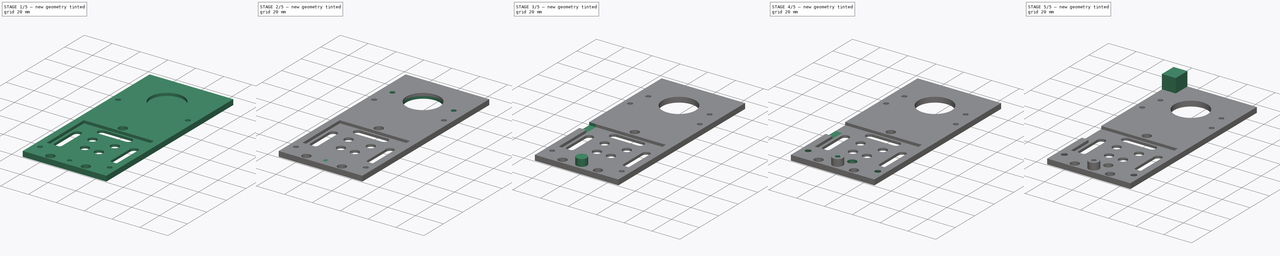
[diagram: build sequence overview — one tinted view per stage of 5, left to right]
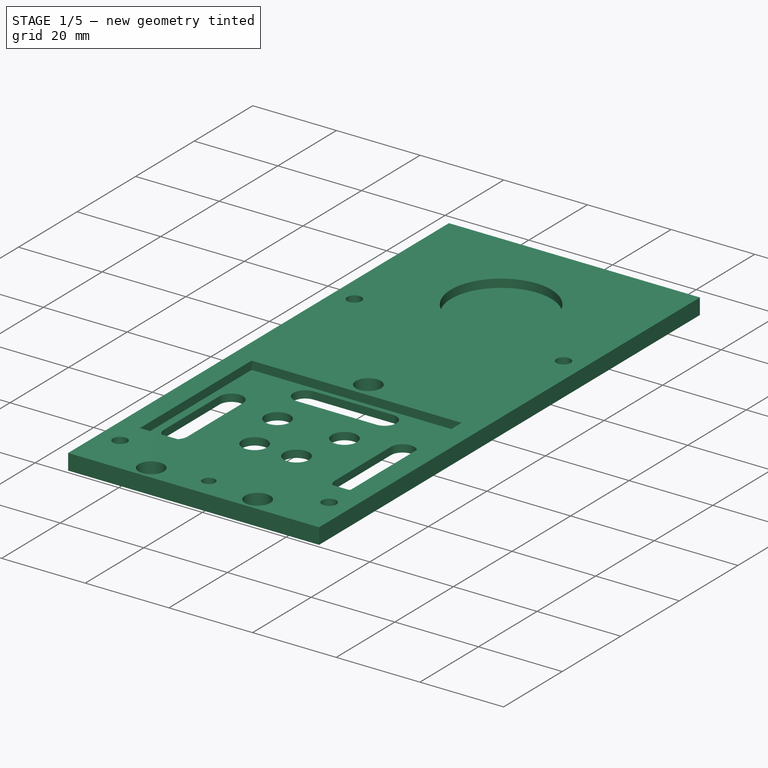
[diagram: stage 1 of 5 — iso view after this stage's code; geometry added in this stage tinted green]
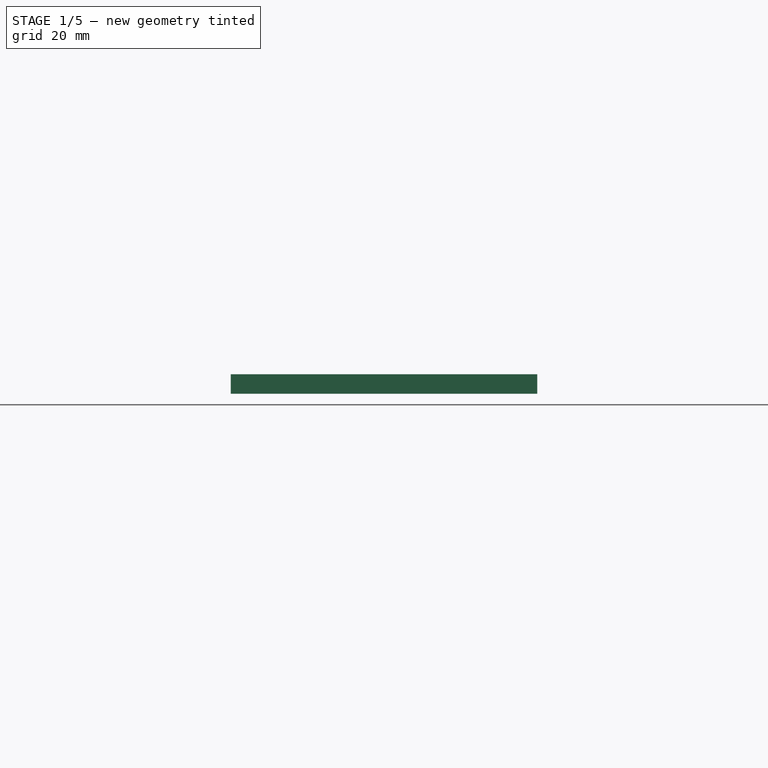
[diagram: stage 1 of 5 — front view after this stage's code; geometry added in this stage tinted green]
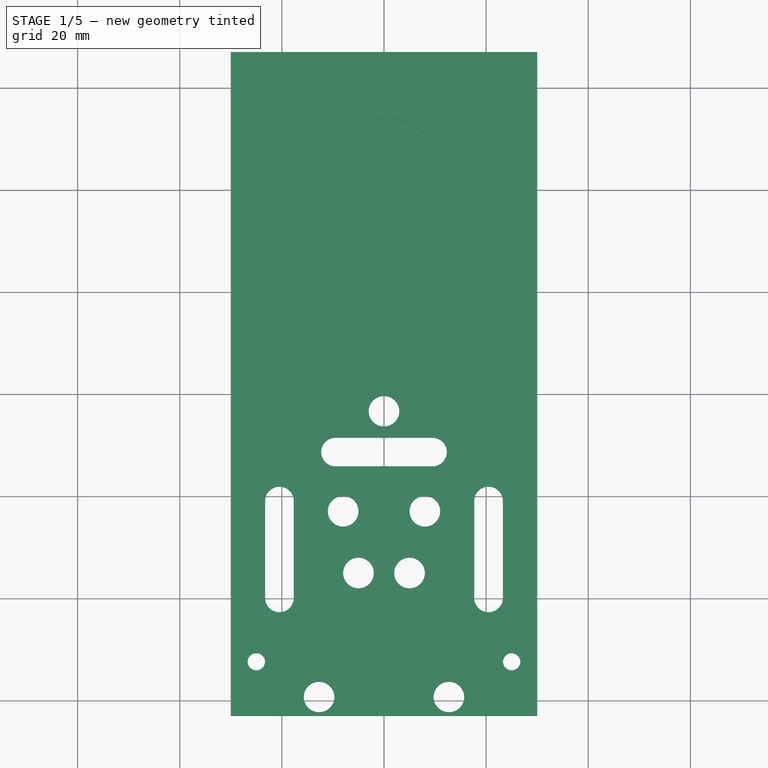
[diagram: stage 1 of 5 — top view after this stage's code; geometry added in this stage tinted green]
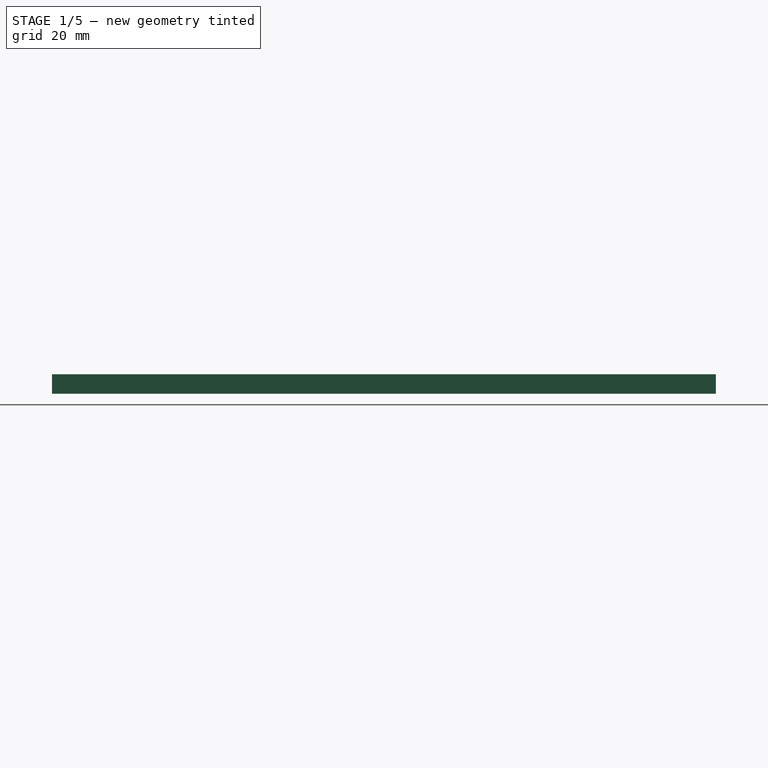
[diagram: stage 1 of 5 — right view after this stage's code; geometry added in this stage tinted green]
FCSTD DOCUMENT  (FreeCAD 0.18.4R)
Label: main_head_PnP_v1.01_2
License: All rights reserved
LicenseURL: http://en.wikipedia.org/wiki/All_rights_reserved
objects: Sketcher::SketchObject×23, PartDesign::Pocket×13, PartDesign::Pad×5, PartDesign::Hole×1, PartDesign::Body×1
note: 62 computed .brp shape members not serialized (recipe doc carries the construction recipe); baked Part::Feature solids carry a one-line shape summary decoded from their .brp

FEATURE [Sketcher::SketchObject] Sketch
  MapMode = 5
  Support = -> [XY_Plane]
  sketch-geometry (31):
    g0: LineSegment StartX=30 StartY=-63 StartZ=0 EndX=-30 EndY=-63 EndZ=0
    g1: LineSegment StartX=-30 StartY=-63 StartZ=0 EndX=-30 EndY=67 EndZ=0
    g2: LineSegment StartX=-30 StartY=67 StartZ=0 EndX=0 EndY=67 EndZ=0
    g3: LineSegment StartX=30 StartY=-2 StartZ=0 EndX=30 EndY=-22 EndZ=0
    g4: LineSegment StartX=30 StartY=-41 StartZ=0 EndX=30 EndY=-63 EndZ=0
    g5: Circle CenterX=-12.71 CenterY=-59.3 CenterZ=0 NormalX=0 NormalY=0 NormalZ=1 AngleXU=0 Radius=3
    g6: Circle CenterX=12.71 CenterY=-59.3 CenterZ=0 NormalX=0 NormalY=0 NormalZ=1 AngleXU=0 Radius=3
    g7: ArcOfCircle CenterX=-20.4691 CenterY=-39.89 CenterZ=0 NormalX=0 NormalY=0 NormalZ=1 AngleXU=0 Radius=2.8 StartAngle=3.14159 EndAngle=6.28319
    g8: ArcOfCircle CenterX=-20.4691 CenterY=-20.89 CenterZ=0 NormalX=0 NormalY=0 NormalZ=1 AngleXU=0 Radius=2.8 StartAngle=0 EndAngle=3.14159
    g9: LineSegment StartX=-17.6691 StartY=-39.89 StartZ=0 EndX=-17.6691 EndY=-20.89 EndZ=0
    g10: LineSegment StartX=-23.2691 StartY=-39.89 StartZ=0 EndX=-23.2691 EndY=-20.89 EndZ=0
    g11: ArcOfCircle CenterX=20.4691 CenterY=-39.89 CenterZ=0 NormalX=0 NormalY=0 NormalZ=1 AngleXU=0 Radius=2.8 StartAngle=3.14159 EndAngle=6.28319
    g12: ArcOfCircle CenterX=20.4691 CenterY=-20.89 CenterZ=0 NormalX=0 NormalY=0 NormalZ=1 AngleXU=0 Radius=2.8 StartAngle=1e-16 EndAngle=3.14159
    g13: LineSegment StartX=23.2691 StartY=-39.89 StartZ=0 EndX=23.2691 EndY=-20.89 EndZ=0
    g14: LineSegment StartX=17.6691 StartY=-39.89 StartZ=0 EndX=17.6691 EndY=-20.89 EndZ=0
    g15: ArcOfCircle CenterX=-9.5 CenterY=-11.3133 CenterZ=0 NormalX=0 NormalY=0 NormalZ=1 AngleXU=0 Radius=2.8 StartAngle=1.5708 EndAngle=4.71239
    g16: ArcOfCircle CenterX=9.5 CenterY=-11.3133 CenterZ=0 NormalX=0 NormalY=0 NormalZ=1 AngleXU=0 Radius=2.8 StartAngle=4.71239 EndAngle=7.85398
    g17: LineSegment StartX=-9.5 StartY=-14.1133 StartZ=0 EndX=9.5 EndY=-14.1133 EndZ=0
    g18: LineSegment StartX=-9.5 StartY=-8.51328 StartZ=0 EndX=9.5 EndY=-8.51328 EndZ=0
    g19: Circle CenterX=0 CenterY=-3.33121 CenterZ=0 NormalX=0 NormalY=0 NormalZ=1 AngleXU=0 Radius=3
    g20: Circle CenterX=-8 CenterY=-22.9179 CenterZ=0 NormalX=0 NormalY=0 NormalZ=1 AngleXU=0 Radius=3
    g21: Circle CenterX=8 CenterY=-22.9179 CenterZ=0 NormalX=0 NormalY=0 NormalZ=1 AngleXU=0 Radius=3
    g22: Circle CenterX=-5 CenterY=-35 CenterZ=0 NormalX=0 NormalY=0 NormalZ=1 AngleXU=0 Radius=3
    g23: Circle CenterX=5 CenterY=-35 CenterZ=0 NormalX=0 NormalY=0 NormalZ=1 AngleXU=0 Radius=3
    g24: Circle CenterX=-5 CenterY=-50 CenterZ=0 NormalX=0 NormalY=0 NormalZ=1 AngleXU=0 Radius=3
    g25: Circle CenterX=5 CenterY=-50 CenterZ=0 NormalX=0 NormalY=0 NormalZ=1 AngleXU=0 Radius=3
    g26: LineSegment StartX=30 StartY=-41 StartZ=0 EndX=30 EndY=-22 EndZ=0
    g27: LineSegment StartX=0 StartY=67 StartZ=0 EndX=30 EndY=67 EndZ=0
    g28: LineSegment StartX=30 StartY=-2 StartZ=0 EndX=30 EndY=67 EndZ=0
    g29: Circle CenterX=-25 CenterY=-52.3926 CenterZ=0 NormalX=0 NormalY=0 NormalZ=1 AngleXU=0 Radius=1.7
    g30: Circle CenterX=25 CenterY=-52.3926 CenterZ=0 NormalX=0 NormalY=0 NormalZ=1 AngleXU=0 Radius=1.7
  constraints (72):
    c: Vertical(g1)
    c: Distance(g0,g0) = 60
    c: Coincident(g2,g1)
    c: PointOnObject(g2,g-2)
    c: Horizontal(g2)
    c: Vertical(g3)
    c: Coincident(g4,g0)
    c: Vertical(g4)
    c: DistanceY(g-1,g1) = 67
    c: Coincident(g0,g1)
    c: Symmetric(g0,g0,g-2)
    c: Symmetric(g5,g6,g-2)
    c: Distance(g6,g5) = 25.42
    c: Radius(g5) = 3
    c: Radius(g6) = 3
    c: Tangent(g7,g10) = 1.5708
    c: Tangent(g7,g9) = -1.5708
    c: Tangent(g9,g8) = -1.5708
    c: Tangent(g10,g8) = 1.5708
    c: Vertical(g9)
    c: Equal(g7,g8)
    c: Tangent(g11,g14) = 1.5708
    c: Tangent(g11,g13) = -1.5708
    c: Tangent(g13,g12) = -1.5708
    c: Tangent(g14,g12) = 1.5708
    c: Vertical(g13)
    c: Equal(g11,g12)
    c: Tangent(g15,g18) = 1.5708
    c: Tangent(g15,g17) = -1.5708
    c: Tangent(g17,g16) = -1.5708
    c: Tangent(g18,g16) = 1.5708
    c: Horizontal(g17)
    c: Distance(g8,g7) = 19
    c: Distance(g12,g11) = 19
    c: Distance(g15,g16) = 19
    c: Distance(g8,g8) = 5.6
    c: Distance(g15,g15) = 5.6
    c: Distance(g12,g12) = 5.6
    c: Symmetric(g15,g16,g-2)
    c: Symmetric(g8,g12,g-2)
    c: PointOnObject(g19,g-2)
    c: Radius(g19) = 3
    c: Symmetric(g20,g21,g-2)
    c: Radius(g20) = 3
    c: Radius(g21) = 3
    c: Distance(g20,g21) = 16
    c: Horizontal(g24,g25)
    c: Vertical(g22,g24)
    c: Vertical(g23,g25)
    c: Symmetric(g22,g23,g-2)
    c: Distance(g22,g23) = 10
    c: Distance(g24,g22) = 15
    c: Radius(g22) = 3
    c: Radius(g23) = 3
    c: Radius(g25) = 3
    c: Radius(g24) = 3
    c: Distance(g5,g0) = 3.7
    c: Distance(g24,g0) = 13
    c: Coincident(g26,g4)
    c: Coincident(g26,g3)
    c: Vertical(g4,g3)
    c: Coincident(g27,g2)
    c: Horizontal(g27)
    c: Coincident(g28,g3)
    c: Coincident(g28,g27)
    c: Vertical(g28)
    c: Distance(g7,g0) = 23.11
    c: Symmetric(g30,g29,g-2)
    c: Distance(g29,g30) = 50
    c: Radius(g29) = 1.7
    c: Radius(g30) = 1.7
    c: DistanceY(g-1,g0) = -63
FEATURE [PartDesign::Pad] Pad
  Length = 1.8
  Length2 = 100
  Profile = -> Sketch
  Type = 0
FEATURE [Sketcher::SketchObject] Sketch001
  ExternalGeometry = -> [Pad]
  MapMode = 5
  Placement = pos=(0,0,1.8) rot=(0,0,1;0rad)
  Support = -> [Pad]
  sketch-geometry (18):
    g0: LineSegment StartX=-30 StartY=-63 StartZ=0 EndX=30 EndY=-63 EndZ=0
    g1: LineSegment StartX=30 StartY=-63 StartZ=0 EndX=30 EndY=67 EndZ=0
    g2: LineSegment StartX=30 StartY=67 StartZ=0 EndX=-30 EndY=67 EndZ=0
    g3: LineSegment StartX=-30 StartY=67 StartZ=0 EndX=-30 EndY=-63 EndZ=0
    g4: Circle CenterX=0 CenterY=42 CenterZ=0 NormalX=0 NormalY=0 NormalZ=1 AngleXU=0 Radius=12
    g5: Circle CenterX=-25 CenterY=27.6074 CenterZ=0 NormalX=0 NormalY=0 NormalZ=1 AngleXU=0 Radius=1.7
    g6: Circle CenterX=25 CenterY=27.6074 CenterZ=0 NormalX=0 NormalY=0 NormalZ=1 AngleXU=0 Radius=1.7
    g7: Circle CenterX=0 CenterY=-3.33121 CenterZ=0 NormalX=0 NormalY=0 NormalZ=1 AngleXU=0 Radius=3
    g8: Circle CenterX=12.71 CenterY=-59.3 CenterZ=0 NormalX=0 NormalY=0 NormalZ=1 AngleXU=0 Radius=3
    g9: Circle CenterX=25 CenterY=-52.3926 CenterZ=0 NormalX=0 NormalY=0 NormalZ=1 AngleXU=0 Radius=1.7
    g10: Circle CenterX=-12.71 CenterY=-59.3 CenterZ=0 NormalX=0 NormalY=0 NormalZ=1 AngleXU=0 Radius=3
    g11: Circle CenterX=-25 CenterY=-52.3926 CenterZ=0 NormalX=0 NormalY=0 NormalZ=1 AngleXU=0 Radius=1.7
    g12: LineSegment StartX=-25.1108 StartY=-7.34877 StartZ=0 EndX=25.1108 EndY=-7.34877 EndZ=0
    g13: LineSegment StartX=25.1108 StartY=-7.34877 StartZ=0 EndX=25.1108 EndY=-45.4696 EndZ=0
    g14: LineSegment StartX=25.1108 StartY=-45.4696 StartZ=0 EndX=-25.1108 EndY=-45.4696 EndZ=0
    g15: LineSegment StartX=-25.1108 StartY=-45.4696 StartZ=0 EndX=-25.1108 EndY=-17.2498 EndZ=0
    g16: LineSegment StartX=-30 StartY=-17.2498 StartZ=0 EndX=-30 EndY=-7.34877 EndZ=0
    g17: LineSegment StartX=-25.1108 StartY=-17.2498 StartZ=0 EndX=-25.1108 EndY=-7.34877 EndZ=0
  constraints (40):
    c: Coincident(g0,g1)
    c: Coincident(g1,g2)
    c: Coincident(g2,g3)
    c: Coincident(g3,g0)
    c: Horizontal(g0)
    c: Horizontal(g2)
    c: Vertical(g1)
    c: Vertical(g3)
    c: Coincident(g0,g-8)
    c: PointOnObject(g-7,g1)
    c: DistanceY(g3,g3) = 130
    c: PointOnObject(g4,g-2)
    c: Distance(g4,g2) = 25
    c: Radius(g4) = 12
    c: Radius(g5) = 1.7
    c: Radius(g6) = 1.7
    c: Distance(g6,g-9) = 80
    c: Coincident(g7,g-14)
    c: Coincident(g8,g-10)
    c: Coincident(g9,g-9)
    c: Radius(g8) = 3
    c: Coincident(g10,g-11)
    c: Radius(g10) = 3
    c: Coincident(g11,g-15)
    c: Radius(g9) = 1.7
    c: Radius(g7) = 3
    c: Radius(g11) = 1.7
    c: Coincident(g12,g13)
    c: Coincident(g13,g14)
    c: Horizontal(g14)
    c: Vertical(g13)
    c: Symmetric(g12,g12,g-2)
    c: PointOnObject(g16,g3)
    c: Coincident(g15,g14)
    c: Vertical(g15)
    c: PointOnObject(g16,g3)
    c: Horizontal(g16,g12)
    c: Coincident(g17,g15)
    c: Coincident(g17,g12)
    c: Vertical(g17)
FEATURE [Sketcher::SketchObject] CopySketch001
  Placement = pos=(0,0,1.8) rot=(0,0,1;0rad)
  sketch-geometry (18):
    g0: LineSegment StartX=-30 StartY=-63 StartZ=0 EndX=30 EndY=-63 EndZ=0
    g1: LineSegment StartX=30 StartY=-63 StartZ=0 EndX=30 EndY=67 EndZ=0
    g2: LineSegment StartX=30 StartY=67 StartZ=0 EndX=-30 EndY=67 EndZ=0
    g3: LineSegment StartX=-30 StartY=67 StartZ=0 EndX=-30 EndY=-63 EndZ=0
    g4: Circle CenterX=0 CenterY=42 CenterZ=0 NormalX=0 NormalY=0 NormalZ=1 AngleXU=0 Radius=12
    g5: Circle CenterX=-25 CenterY=27.6074 CenterZ=0 NormalX=0 NormalY=0 NormalZ=1 AngleXU=0 Radius=1.7
    g6: Circle CenterX=25 CenterY=27.6074 CenterZ=0 NormalX=0 NormalY=0 NormalZ=1 AngleXU=0 Radius=1.7
    g7: Circle CenterX=0 CenterY=-3.33121 CenterZ=0 NormalX=0 NormalY=0 NormalZ=1 AngleXU=0 Radius=3
    g8: Circle CenterX=12.71 CenterY=-59.3 CenterZ=0 NormalX=0 NormalY=0 NormalZ=1 AngleXU=0 Radius=3
    g9: Circle CenterX=25 CenterY=-52.3926 CenterZ=0 NormalX=0 NormalY=0 NormalZ=1 AngleXU=0 Radius=1.7
    g10: Circle CenterX=-12.71 CenterY=-59.3 CenterZ=0 NormalX=0 NormalY=0 NormalZ=1 AngleXU=0 Radius=3
    g11: Circle CenterX=-25 CenterY=-52.3926 CenterZ=0 NormalX=0 NormalY=0 NormalZ=1 AngleXU=0 Radius=1.7
    g12: LineSegment StartX=-25.1108 StartY=-7.34877 StartZ=0 EndX=25.1108 EndY=-7.34877 EndZ=0
    g13: LineSegment StartX=25.1108 StartY=-7.34877 StartZ=0 EndX=25.1108 EndY=-45.4696 EndZ=0
    g14: LineSegment StartX=25.1108 StartY=-45.4696 StartZ=0 EndX=-25.1108 EndY=-45.4696 EndZ=0
    g15: LineSegment StartX=-25.1108 StartY=-45.4696 StartZ=0 EndX=-25.1108 EndY=-17.2498 EndZ=0
    g16: LineSegment StartX=-30 StartY=-17.2498 StartZ=0 EndX=-30 EndY=-7.34877 EndZ=0
    g17: LineSegment StartX=-25.1108 StartY=-17.2498 StartZ=0 EndX=-25.1108 EndY=-7.34877 EndZ=0
  constraints (32):
    c: Coincident(g0,g1)
    c: Coincident(g1,g2)
    c: Coincident(g2,g3)
    c: Coincident(g3,g0)
    c: Horizontal(g0)
    c: Horizontal(g2)
    c: Vertical(g1)
    c: Vertical(g3)
    c: DistanceY(g3,g3) = 130
    c: PointOnObject(g4,g-2)
    c: Distance(g4,g2) = 25
    c: Radius(g4) = 12
    c: Radius(g5) = 1.7
    c: Radius(g6) = 1.7
    c: Radius(g8) = 3
    c: Radius(g10) = 3
    c: Radius(g9) = 1.7
    c: Radius(g7) = 3
    c: Radius(g11) = 1.7
    c: Coincident(g12,g13)
    c: Coincident(g13,g14)
    c: Horizontal(g14)
    c: Vertical(g13)
    c: Symmetric(g12,g12,g-2)
    c: PointOnObject(g16,g3)
    c: Coincident(g15,g14)
    c: Vertical(g15)
    c: PointOnObject(g16,g3)
    c: Horizontal(g16,g12)
    c: Coincident(g17,g15)
    c: Coincident(g17,g12)
    c: Vertical(g17)
FEATURE [PartDesign::Pad] Pad001
  BaseFeature = -> Pad
  Length = 2
  Length2 = 100
  Profile = -> CopySketch001
  Type = 0
FEATURE [Sketcher::SketchObject] Sketch003
  MapMode = 5
  Placement = pos=(0,0,8) rot=(0,0,1;0rad)
  sketch-geometry (1):
    g0: Circle CenterX=0 CenterY=-57.8006 CenterZ=0 NormalX=0 NormalY=0 NormalZ=1 AngleXU=0 Radius=1.5
  constraints (1):
    c: Radius(g0) = 1.5
FEATURE [PartDesign::Pocket] Pocket
  BaseFeature = -> Pad001
  Length = 6
  Length2 = 100
  Profile = -> Sketch003
  Type = 0
FEATURE [Sketcher::SketchObject] Sketch004
  ExternalGeometry = -> [Pocket]
  MapMode = 5
  Placement = pos=(-30,0,0) rot=(0.57735,-0.57735,-0.57735;2.0944rad)
  Support = -> [Pocket]
  sketch-geometry (4):
    g0: LineSegment StartX=-25.1108 StartY=-7.34877 StartZ=0 EndX=-30 EndY=-7.34877 EndZ=0
    g1: LineSegment StartX=-30 StartY=-7.34877 StartZ=0 EndX=-30 EndY=-17.2498 EndZ=0
    g2: LineSegment StartX=-30 StartY=-17.2498 StartZ=0 EndX=-25.1108 EndY=-17.2498 EndZ=0
    g3: LineSegment StartX=-25.1108 StartY=-17.2498 StartZ=0 EndX=-25.1108 EndY=-7.34877 EndZ=0
  constraints (7):
    c: Coincident(g0,g1)
    c: Coincident(g1,g2)
    c: Coincident(g2,g3)
    c: Coincident(g3,g0)
    c: Horizontal(g0)
    c: Horizontal(g2)
    c: Vertical(g1)
FEATURE [PartDesign::Pocket] Pocket001
  BaseFeature = -> Pocket
  Length = 2
  Length2 = 100
  Profile = -> Sketch004
  Type = 0
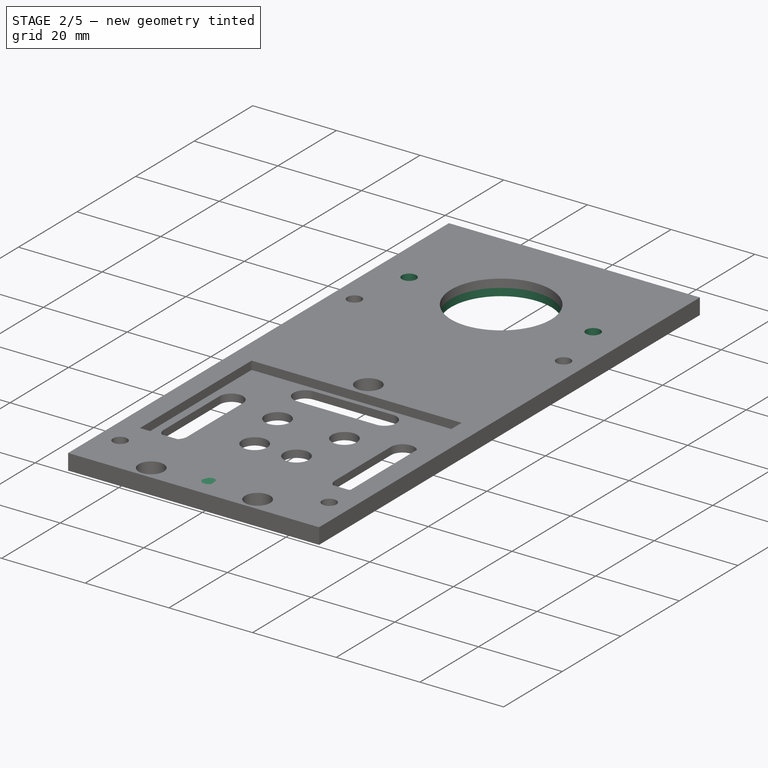
[diagram: stage 2 of 5 — iso view after this stage's code; geometry added in this stage tinted green]
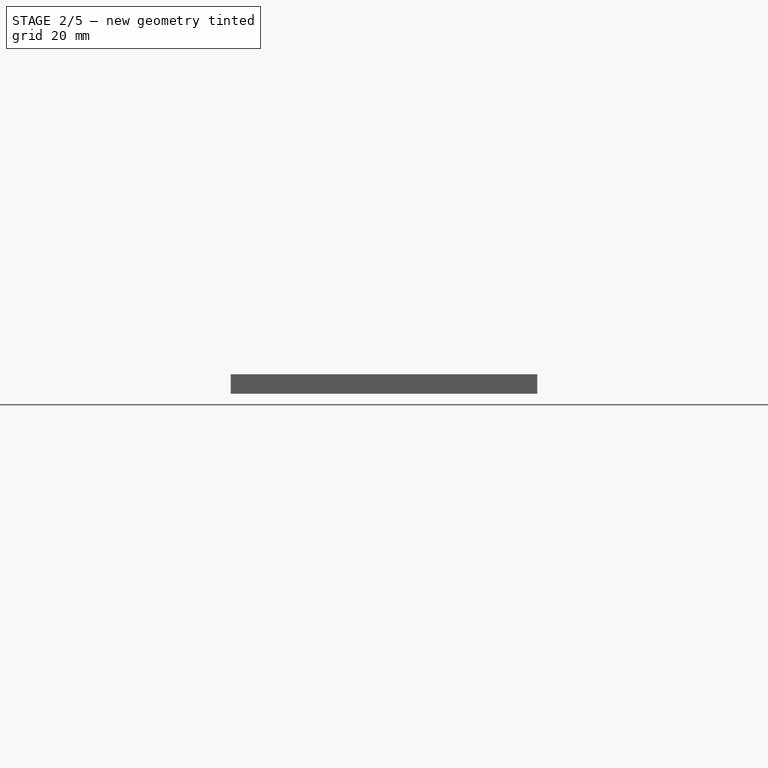
[diagram: stage 2 of 5 — front view after this stage's code; geometry added in this stage tinted green]
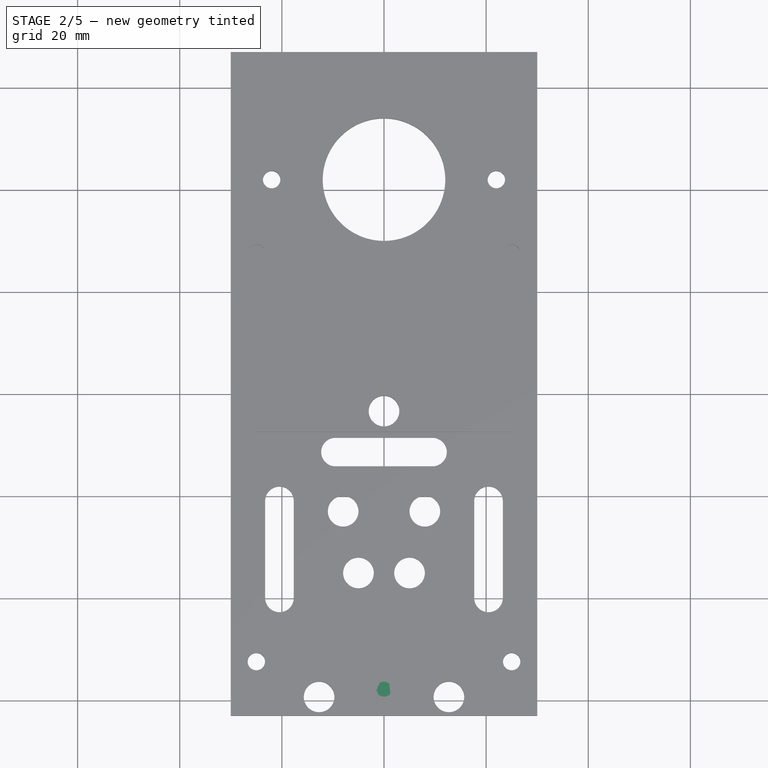
[diagram: stage 2 of 5 — top view after this stage's code; geometry added in this stage tinted green]
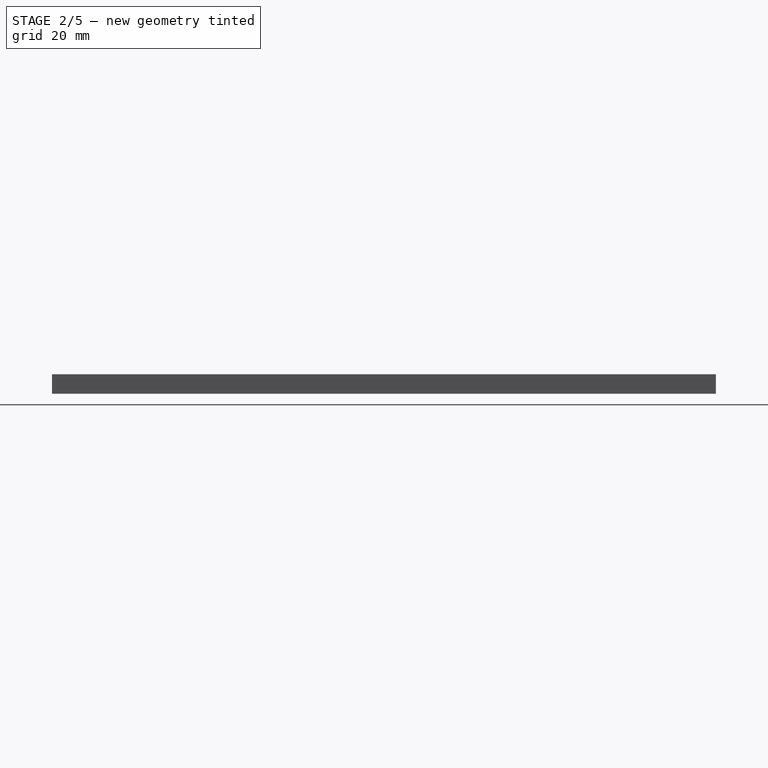
[diagram: stage 2 of 5 — right view after this stage's code; geometry added in this stage tinted green]
FEATURE [Sketcher::SketchObject] Sketch005
  ExternalGeometry = -> [Pocket001]
  MapMode = 5
  Placement = pos=(-30,0,0) rot=(0.57735,-0.57735,-0.57735;2.0944rad)
  Support = -> [Pocket001]
  sketch-geometry (2):
    g0: Circle CenterX=-22 CenterY=42 CenterZ=0 NormalX=0 NormalY=0 NormalZ=1 AngleXU=0 Radius=1.66688
    g1: Circle CenterX=22 CenterY=42 CenterZ=0 NormalX=0 NormalY=0 NormalZ=1 AngleXU=0 Radius=1.75147
FEATURE [PartDesign::Pocket] Pocket002
  BaseFeature = -> Pocket001
  Length = 4
  Length2 = 100
  Profile = -> Sketch005
  Type = 0
FEATURE [Sketcher::SketchObject] CopySketch001001  label="CopySketch002"
  Placement = pos=(0,0,1.8) rot=(0,0,1;0rad)
  sketch-geometry (18):
    g0: LineSegment StartX=-30 StartY=-63 StartZ=0 EndX=30 EndY=-63 EndZ=0
    g1: LineSegment StartX=30 StartY=-63 StartZ=0 EndX=30 EndY=67 EndZ=0
    g2: LineSegment StartX=30 StartY=67 StartZ=0 EndX=-30 EndY=67 EndZ=0
    g3: LineSegment StartX=-30 StartY=67 StartZ=0 EndX=-30 EndY=-63 EndZ=0
    g4: Circle CenterX=0 CenterY=42 CenterZ=0 NormalX=0 NormalY=0 NormalZ=1 AngleXU=0 Radius=12
    g5: Circle CenterX=-25 CenterY=27.6074 CenterZ=0 NormalX=0 NormalY=0 NormalZ=1 AngleXU=0 Radius=1.7
    g6: Circle CenterX=25 CenterY=27.6074 CenterZ=0 NormalX=0 NormalY=0 NormalZ=1 AngleXU=0 Radius=1.7
    g7: Circle CenterX=0 CenterY=-3.33121 CenterZ=0 NormalX=0 NormalY=0 NormalZ=1 AngleXU=0 Radius=3
    g8: Circle CenterX=12.71 CenterY=-59.3 CenterZ=0 NormalX=0 NormalY=0 NormalZ=1 AngleXU=0 Radius=3
    g9: Circle CenterX=25 CenterY=-52.3926 CenterZ=0 NormalX=0 NormalY=0 NormalZ=1 AngleXU=0 Radius=1.7
    g10: Circle CenterX=-12.71 CenterY=-59.3 CenterZ=0 NormalX=0 NormalY=0 NormalZ=1 AngleXU=0 Radius=3
    g11: Circle CenterX=-25 CenterY=-52.3926 CenterZ=0 NormalX=0 NormalY=0 NormalZ=1 AngleXU=0 Radius=1.7
    g12: LineSegment StartX=-25.1108 StartY=-7.34877 StartZ=0 EndX=25.1108 EndY=-7.34877 EndZ=0
    g13: LineSegment StartX=25.1108 StartY=-7.34877 StartZ=0 EndX=25.1108 EndY=-45.4696 EndZ=0
    g14: LineSegment StartX=25.1108 StartY=-45.4696 StartZ=0 EndX=-25.1108 EndY=-45.4696 EndZ=0
    g15: LineSegment StartX=-25.1108 StartY=-45.4696 StartZ=0 EndX=-25.1108 EndY=-17.2498 EndZ=0
    g16: LineSegment StartX=-30 StartY=-17.2498 StartZ=0 EndX=-30 EndY=-7.34877 EndZ=0
    g17: LineSegment StartX=-25.1108 StartY=-17.2498 StartZ=0 EndX=-25.1108 EndY=-7.34877 EndZ=0
  constraints (32):
    c: Coincident(g0,g1)
    c: Coincident(g1,g2)
    c: Coincident(g2,g3)
    c: Coincident(g3,g0)
    c: Horizontal(g0)
    c: Horizontal(g2)
    c: Vertical(g1)
    c: Vertical(g3)
    c: DistanceY(g3,g3) = 130
    c: PointOnObject(g4,g-2)
    c: Distance(g4,g2) = 25
    c: Radius(g4) = 12
    c: Radius(g5) = 1.7
    c: Radius(g6) = 1.7
    c: Radius(g8) = 3
    c: Radius(g10) = 3
    c: Radius(g9) = 1.7
    c: Radius(g7) = 3
    c: Radius(g11) = 1.7
    c: Coincident(g12,g13)
    c: Coincident(g13,g14)
    c: Horizontal(g14)
    c: Vertical(g13)
    c: Symmetric(g12,g12,g-2)
    c: PointOnObject(g16,g3)
    c: Coincident(g15,g14)
    c: Vertical(g15)
    c: PointOnObject(g16,g3)
    c: Horizontal(g16,g12)
    c: Coincident(g17,g15)
    c: Coincident(g17,g12)
    c: Vertical(g17)
FEATURE [PartDesign::Pad] Pad002
  BaseFeature = -> Pocket002
  Length = 2
  Length2 = 100
  Profile = -> CopySketch001001
  Type = 0
FEATURE [Sketcher::SketchObject] Sketch006
  ExternalGeometry = -> [Pad002]
  MapMode = 5
  Placement = pos=(0,0,1.8) rot=(0,0,1;0rad)
  Support = -> [Pad002]
  sketch-geometry (1):
    g0: Circle CenterX=0 CenterY=42 CenterZ=0 NormalX=0 NormalY=0 NormalZ=1 AngleXU=0 Radius=12
  constraints (2):
    c: Coincident(g0,g-3)
    c: Radius(g0) = 12
FEATURE [Sketcher::SketchObject] Sketch007
  ExternalGeometry = -> [Pad002]
  MapMode = 5
  Placement = pos=(0,0,3.8) rot=(0,0,1;0rad)
  Support = -> [Pad002]
  sketch-geometry (2):
    g0: Circle CenterX=-22 CenterY=42 CenterZ=0 NormalX=0 NormalY=0 NormalZ=1 AngleXU=0 Radius=1.7
    g1: Circle CenterX=22 CenterY=42 CenterZ=0 NormalX=0 NormalY=0 NormalZ=1 AngleXU=0 Radius=1.7
  constraints (5):
    c: Horizontal(g0,g-3)
    c: Radius(g0) = 1.7
    c: Radius(g1) = 1.7
    c: Distance(g0,g1) = 44
    c: Symmetric(g0,g1,g-2)
FEATURE [PartDesign::Pocket] Pocket003
  BaseFeature = -> Pad002
  Length = 5
  Length2 = 100
  Profile = -> Sketch007
  Type = 0
FEATURE [PartDesign::Pocket] Pocket004
  BaseFeature = -> Pocket003
  Length = 5
  Length2 = 100
  Profile = -> Sketch006
  Type = 0
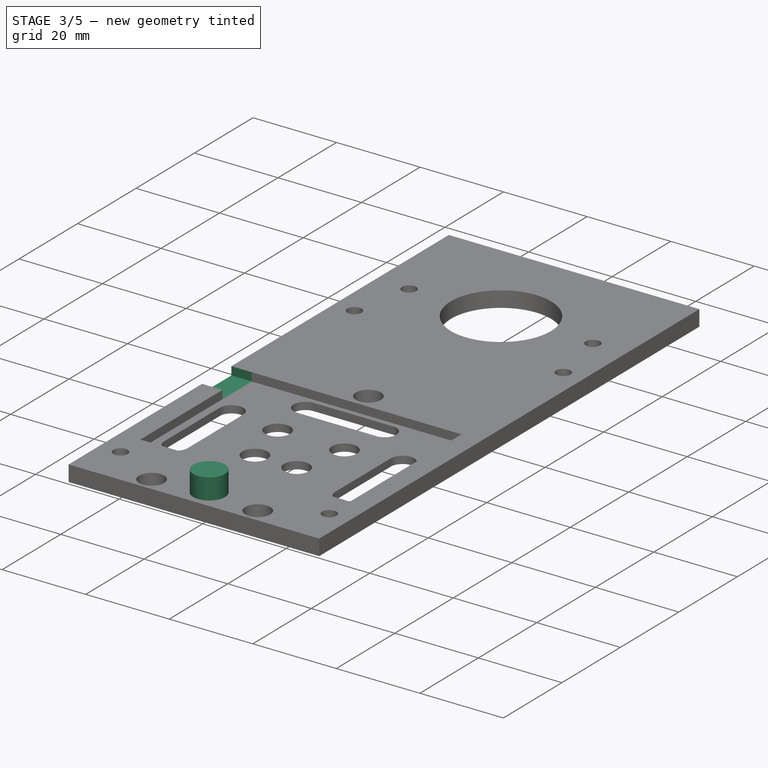
[diagram: stage 3 of 5 — iso view after this stage's code; geometry added in this stage tinted green]
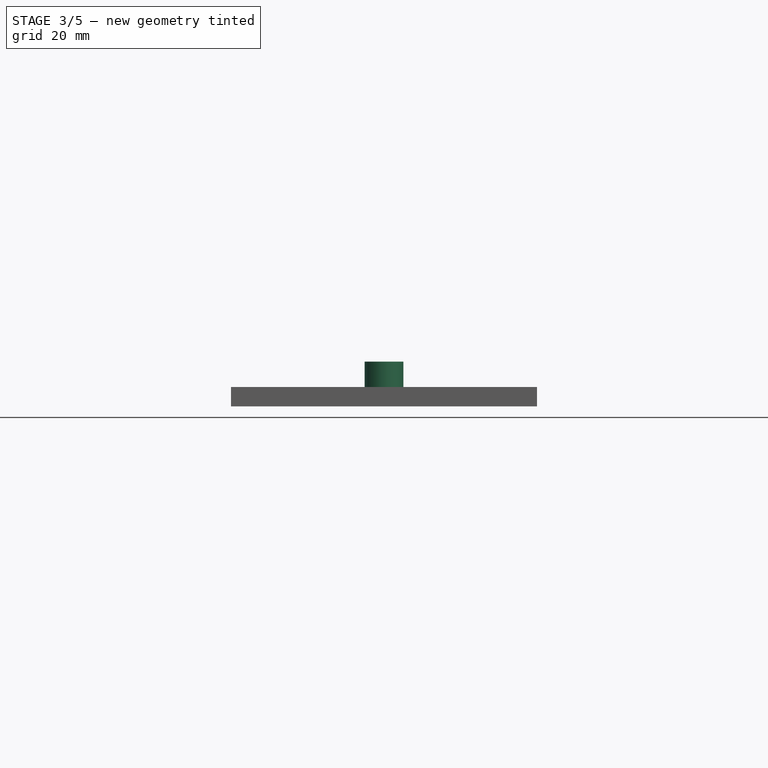
[diagram: stage 3 of 5 — front view after this stage's code; geometry added in this stage tinted green]
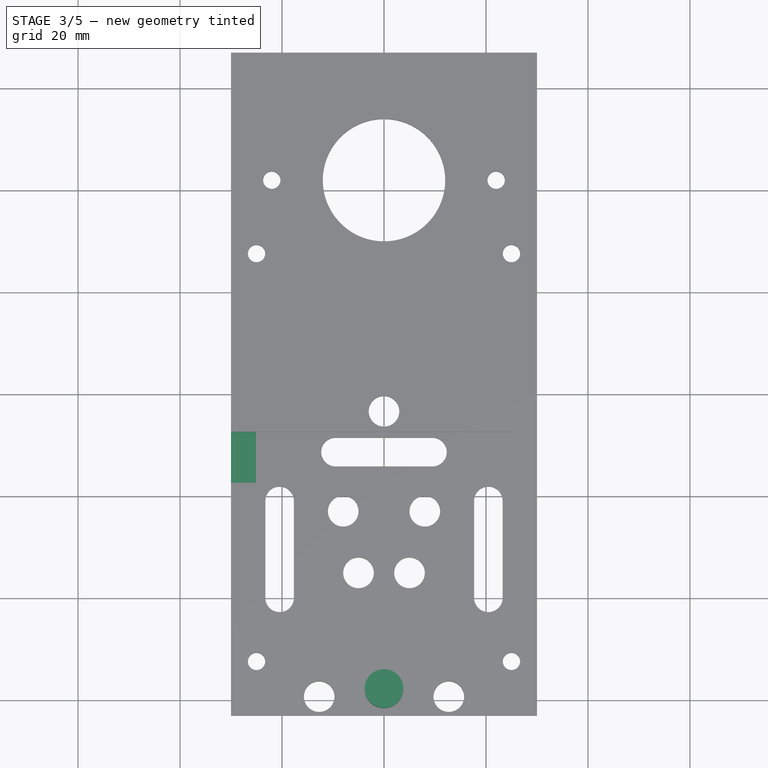
[diagram: stage 3 of 5 — top view after this stage's code; geometry added in this stage tinted green]
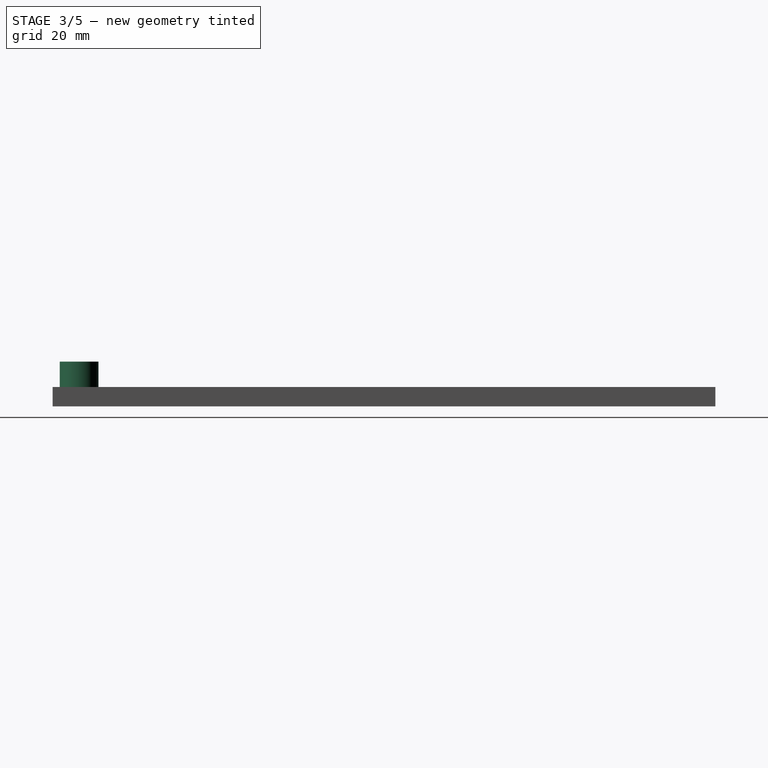
[diagram: stage 3 of 5 — right view after this stage's code; geometry added in this stage tinted green]
FEATURE [Sketcher::SketchObject] Sketch008
  ExternalGeometry = -> [Pocket003]
  MapMode = 5
  Placement = pos=(0,0,1.8) rot=(0,0,1;0rad)
  Support = -> [Pocket003]
  sketch-geometry (2):
    g0: Circle CenterX=-25 CenterY=27.6074 CenterZ=0 NormalX=0 NormalY=0 NormalZ=1 AngleXU=0 Radius=1.7
    g1: Circle CenterX=25 CenterY=27.6074 CenterZ=0 NormalX=0 NormalY=0 NormalZ=1 AngleXU=0 Radius=1.7
  constraints (4):
    c: Coincident(g0,g-3)
    c: Coincident(g1,g-4)
    c: Radius(g1) = 1.7
    c: Radius(g0) = 1.7
FEATURE [Sketcher::SketchObject] CopySketch008
  Placement = pos=(0,0,1.8) rot=(0,0,1;0rad)
  sketch-geometry (2):
    g0: Circle CenterX=-25 CenterY=27.6074 CenterZ=0 NormalX=0 NormalY=0 NormalZ=1 AngleXU=0 Radius=1.7
    g1: Circle CenterX=25 CenterY=27.6074 CenterZ=0 NormalX=0 NormalY=0 NormalZ=1 AngleXU=0 Radius=1.7
  constraints (2):
    c: Radius(g1) = 1.7
    c: Radius(g0) = 1.7
FEATURE [PartDesign::Pocket] Pocket005
  BaseFeature = -> Pocket004
  Length = 5
  Length2 = 100
  Profile = -> CopySketch008
  Type = 0
FEATURE [Sketcher::SketchObject] Sketch009
  ExternalGeometry = -> [Pocket005]
  MapMode = 5
  Support = -> [XY_Plane]
FEATURE [Sketcher::SketchObject] Sketch010
  ExternalGeometry = -> [Pocket005]
  MapMode = 5
  Placement = pos=(0,0,3.8) rot=(0,0,1;0rad)
  Support = -> [Pocket005]
  sketch-geometry (4):
    g0: LineSegment StartX=-25.1108 StartY=-7.34877 StartZ=0 EndX=-30 EndY=-7.34877 EndZ=0
    g1: LineSegment StartX=-30 StartY=-7.34877 StartZ=0 EndX=-30 EndY=-17.3488 EndZ=0
    g2: LineSegment StartX=-30 StartY=-17.3488 StartZ=0 EndX=-25.1108 EndY=-17.3488 EndZ=0
    g3: LineSegment StartX=-25.1108 StartY=-17.3488 StartZ=0 EndX=-25.1108 EndY=-7.34877 EndZ=0
  constraints (11):
    c: Coincident(g0,g1)
    c: Coincident(g1,g2)
    c: Coincident(g2,g3)
    c: Coincident(g3,g0)
    c: Horizontal(g0)
    c: Horizontal(g2)
    c: Vertical(g1)
    c: Vertical(g3)
    c: Coincident(g0,g-3)
    c: PointOnObject(g1,g-4)
    c: DistanceY(g3,g3) = 10
FEATURE [PartDesign::Pocket] Pocket006
  BaseFeature = -> Pocket005
  Length = 2
  Length2 = 100
  Profile = -> Sketch010
  Type = 0
FEATURE [Sketcher::SketchObject] Sketch011
  ExternalGeometry = -> [Pocket006]
  MapMode = 5
  Placement = pos=(0,0,3.8) rot=(0,0,1;0rad)
  Support = -> [Pocket006]
  sketch-geometry (1):
    g0: Circle CenterX=0 CenterY=-57.8006 CenterZ=0 NormalX=0 NormalY=0 NormalZ=1 AngleXU=0 Radius=3.8
  constraints (2):
    c: Coincident(g0,g-3)
    c: Radius(g0) = 3.8
FEATURE [PartDesign::Pad] Pad003
  BaseFeature = -> Pocket006
  Length = 5
  Length2 = 100
  Profile = -> Sketch011
  Type = 0
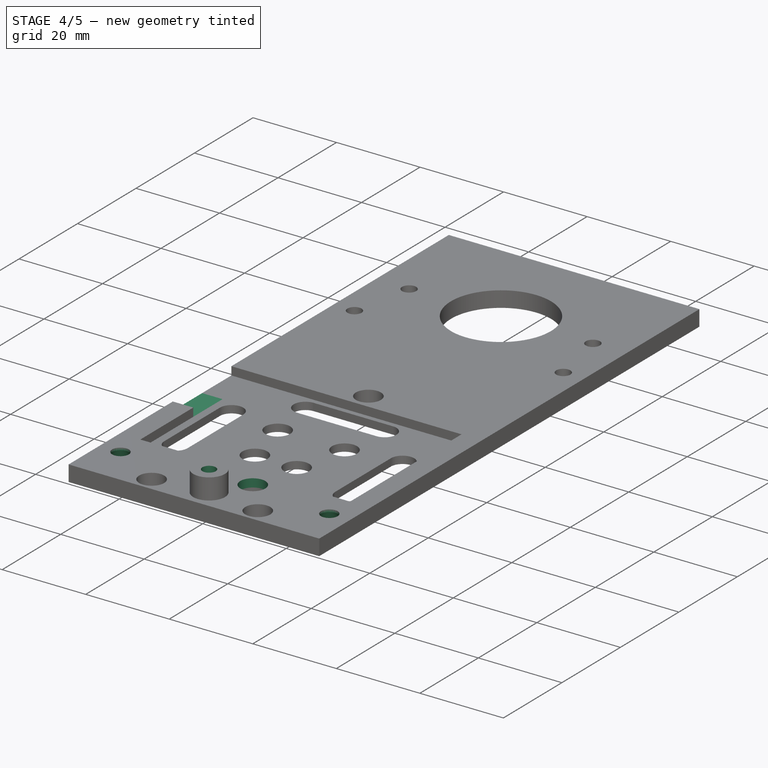
[diagram: stage 4 of 5 — iso view after this stage's code; geometry added in this stage tinted green]
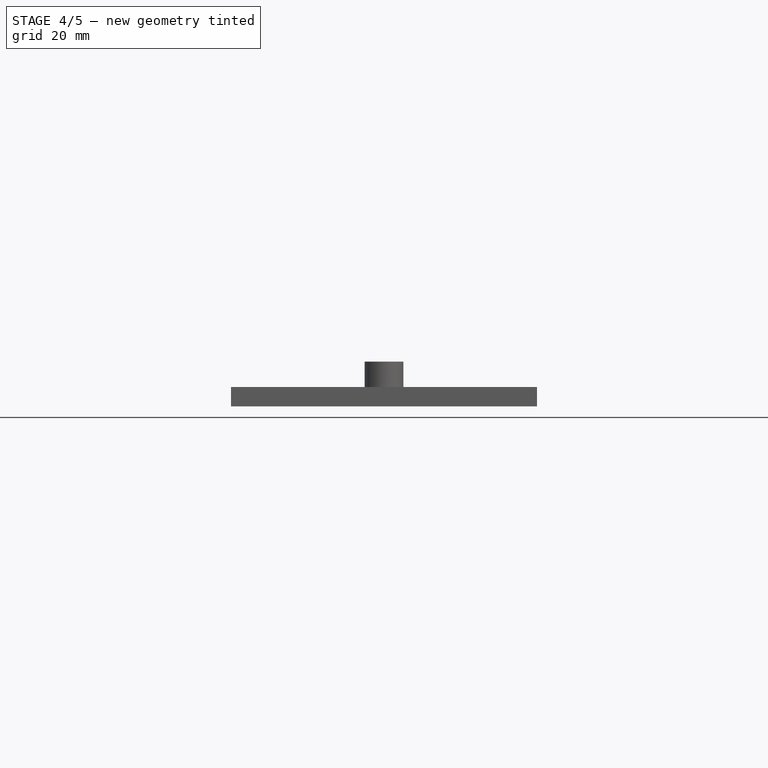
[diagram: stage 4 of 5 — front view after this stage's code; geometry added in this stage tinted green]
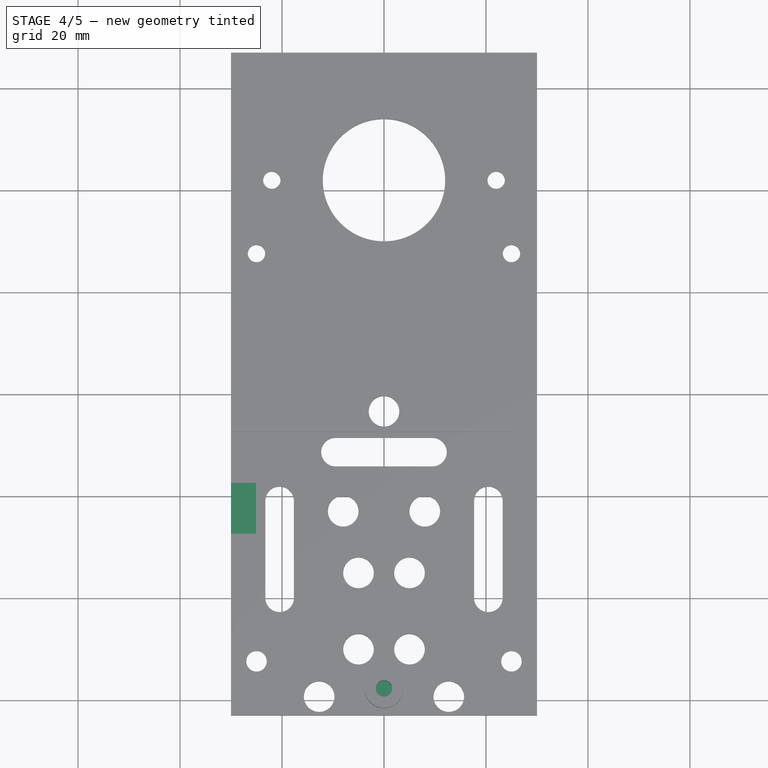
[diagram: stage 4 of 5 — top view after this stage's code; geometry added in this stage tinted green]
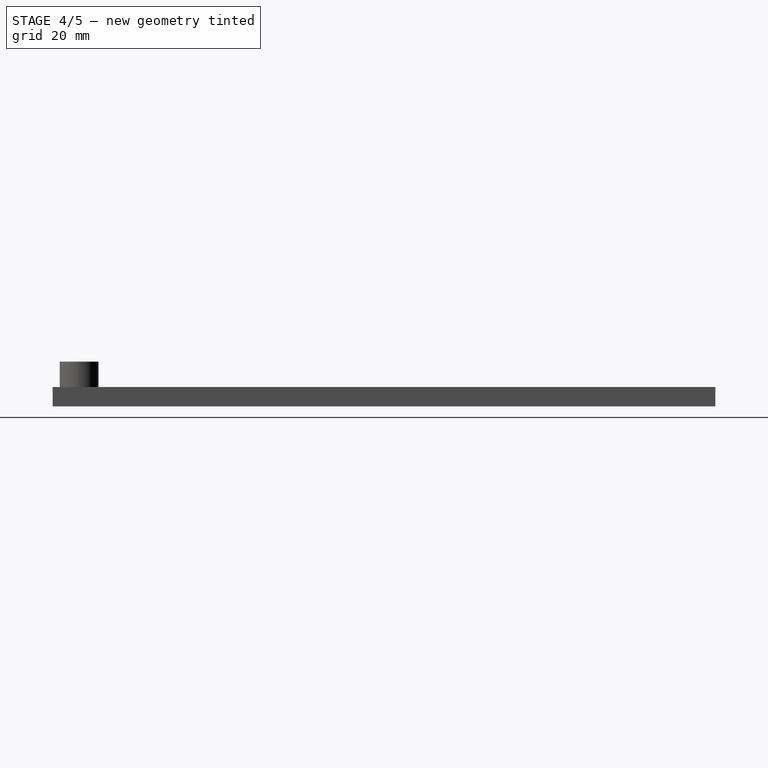
[diagram: stage 4 of 5 — right view after this stage's code; geometry added in this stage tinted green]
FEATURE [Sketcher::SketchObject] Sketch012
  ExternalGeometry = -> [Pad003]
  MapMode = 5
  Placement = pos=(0,0,8.8) rot=(0,0,1;0rad)
  Support = -> [Pad003]
  sketch-geometry (1):
    g0: Circle CenterX=0 CenterY=-57.8006 CenterZ=0 NormalX=0 NormalY=0 NormalZ=1 AngleXU=0 Radius=1.6
  constraints (2):
    c: Coincident(g0,g-3)
    c: Radius(g0) = 1.6
FEATURE [PartDesign::Pocket] Pocket007
  BaseFeature = -> Pad003
  Length = 7
  Length2 = 100
  Profile = -> Sketch012
  Type = 0
FEATURE [Sketcher::SketchObject] Sketch013
  ExternalGeometry = -> [Pocket007]
  MapMode = 5
  Placement = pos=(0,0,1.8) rot=(1,0,0;3.14159rad)
  Support = -> [Pocket007]
  sketch-geometry (2):
    g0: Circle CenterX=-5 CenterY=50 CenterZ=0 NormalX=0 NormalY=0 NormalZ=1 AngleXU=0 Radius=3
    g1: Circle CenterX=5 CenterY=50 CenterZ=0 NormalX=0 NormalY=0 NormalZ=1 AngleXU=0 Radius=3
  constraints (4):
    c: Coincident(g0,g-3)
    c: Coincident(g1,g-4)
    c: Radius(g1) = 3
    c: Radius(g0) = 3
FEATURE [PartDesign::Pocket] Pocket008
  BaseFeature = -> Pocket007
  Length = 5
  Length2 = 100
  Profile = -> Sketch013
  Type = 0
FEATURE [Sketcher::SketchObject] Sketch014
  ExternalGeometry = -> [Pocket007]
  MapMode = 5
  Placement = pos=(0,0,0) rot=(1,0,0;3.14159rad)
  Support = -> [Pocket007]
  sketch-geometry (2):
    g0: Circle CenterX=-25 CenterY=52.3926 CenterZ=0 NormalX=0 NormalY=0 NormalZ=1 AngleXU=0 Radius=3
    g1: Circle CenterX=25 CenterY=52.3926 CenterZ=0 NormalX=0 NormalY=0 NormalZ=1 AngleXU=0 Radius=3
  constraints (4):
    c: Coincident(g0,g-3)
    c: Coincident(g1,g-4)
    c: Radius(g1) = 3
    c: Radius(g0) = 3
FEATURE [PartDesign::Hole] Hole
  BaseFeature = -> Pocket008
  Depth = 8
  DepthType = 0
  Diameter = 4
  DrillPoint = 1
  DrillPointAngle = 118
  HoleCutCountersinkAngle = 50
  HoleCutDepth = 0
  HoleCutDiameter = 7
  HoleCutType = 2
  ModelActualThread = false
  Profile = -> Sketch014
  Tapered = false
  TaperedAngle = 90
  ThreadAngle = 0
  ThreadClass = 0
  ThreadCutOffInner = 0
  ThreadCutOffOuter = 0
  ThreadDirection = 0
  ThreadFit = 0
  ThreadPitch = 0
  ThreadSize = 0
  ThreadType = 0
  Threaded = false
FEATURE [Sketcher::SketchObject] Sketch015
  MapMode = 5
  Placement = pos=(0,0,3.8) rot=(0,0,1;0rad)
  Support = -> [Hole]
FEATURE [Sketcher::SketchObject] Sketch016
  ExternalGeometry = -> [Hole]
  MapMode = 5
  Placement = pos=(0,0,3.8) rot=(0,0,1;0rad)
  Support = -> [Hole]
  sketch-geometry (4):
    g0: LineSegment StartX=-30 StartY=-17.3488 StartZ=0 EndX=-25.1108 EndY=-17.3488 EndZ=0
    g1: LineSegment StartX=-25.1108 StartY=-17.3488 StartZ=0 EndX=-25.1108 EndY=-27.3488 EndZ=0
    g2: LineSegment StartX=-25.1108 StartY=-27.3488 StartZ=0 EndX=-30 EndY=-27.3488 EndZ=0
    g3: LineSegment StartX=-30 StartY=-27.3488 StartZ=0 EndX=-30 EndY=-17.3488 EndZ=0
  constraints (11):
    c: Coincident(g0,g1)
    c: Coincident(g1,g2)
    c: Coincident(g2,g3)
    c: Coincident(g3,g0)
    c: Horizontal(g0)
    c: Horizontal(g2)
    c: Vertical(g1)
    c: Vertical(g3)
    c: Coincident(g0,g-3)
    c: PointOnObject(g1,g-4)
    c: DistanceY(g3,g3) = 10
FEATURE [PartDesign::Pocket] Pocket009
  BaseFeature = -> Hole
  Length = 2
  Length2 = 100
  Profile = -> Sketch016
  Type = 0
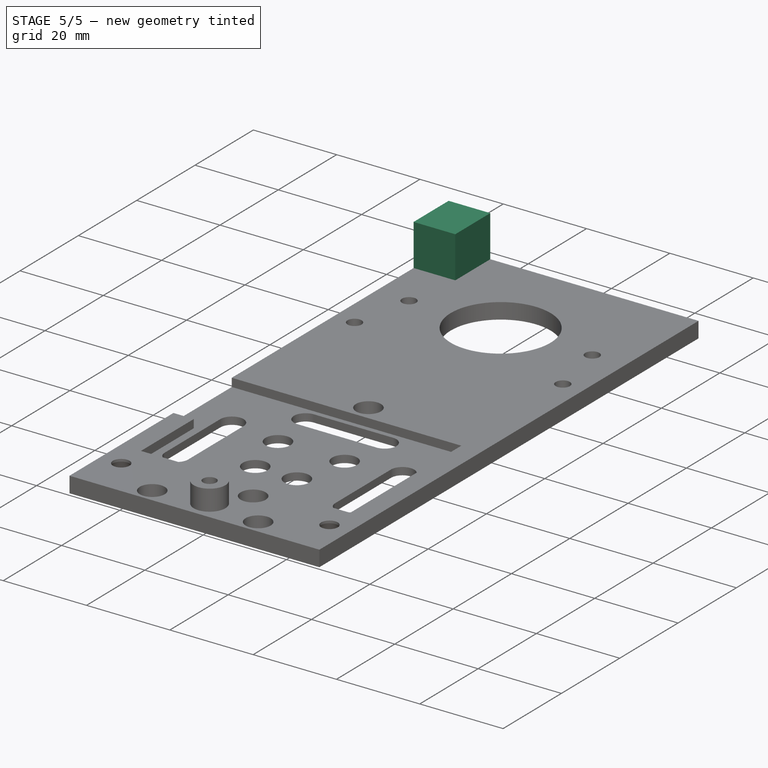
[diagram: stage 5 of 5 — iso view after this stage's code; geometry added in this stage tinted green]
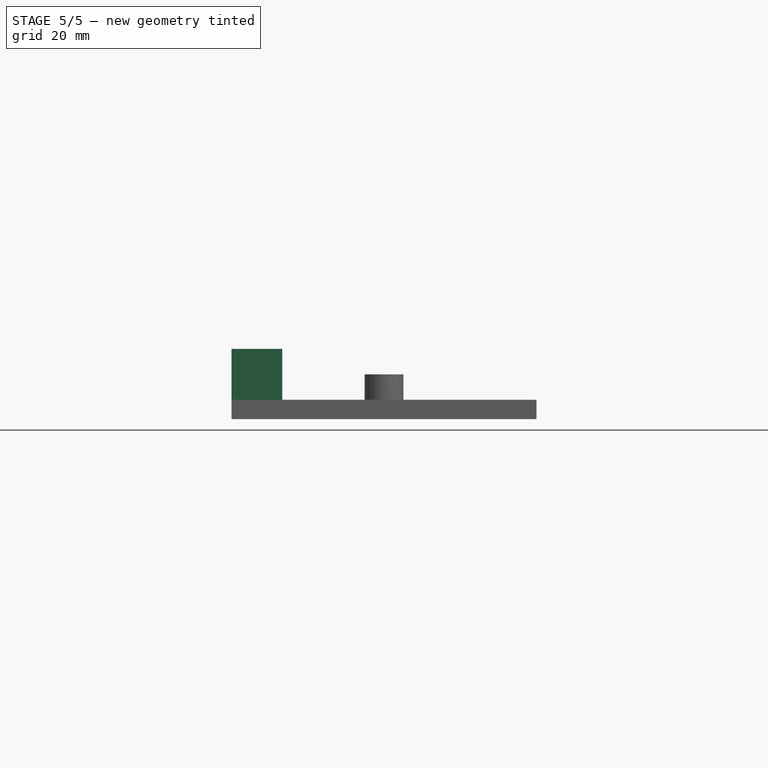
[diagram: stage 5 of 5 — front view after this stage's code; geometry added in this stage tinted green]
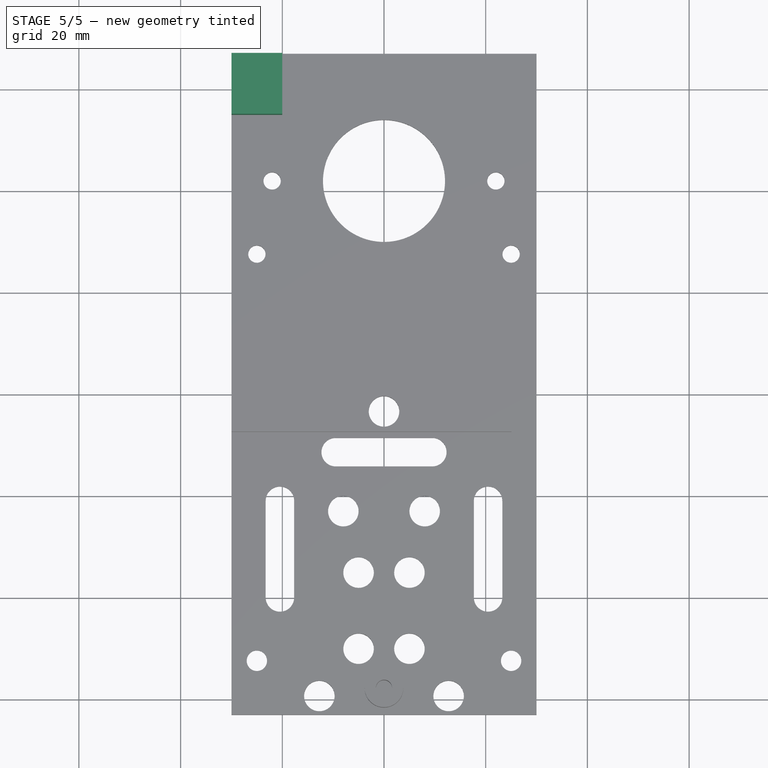
[diagram: stage 5 of 5 — top view after this stage's code; geometry added in this stage tinted green]
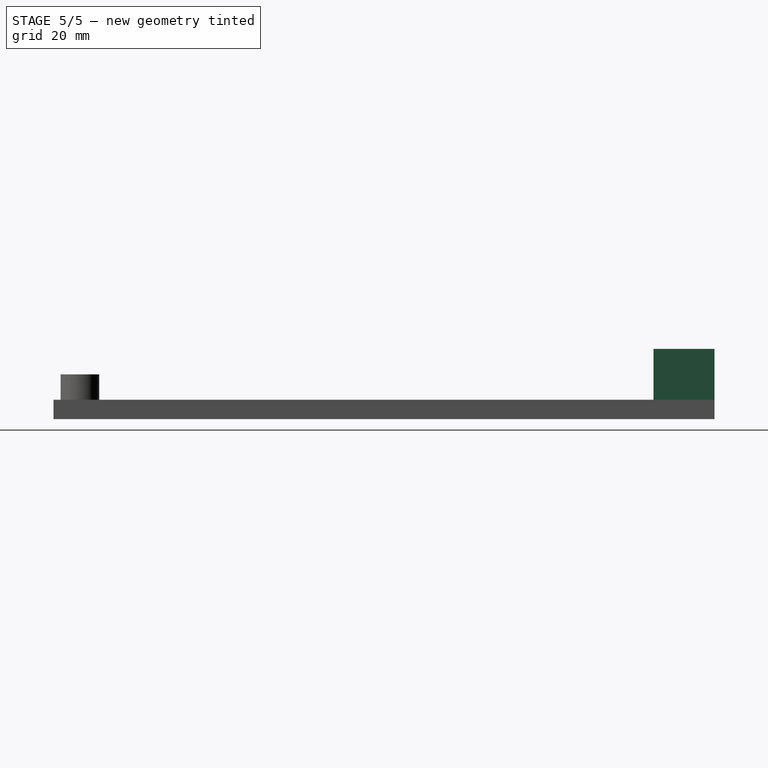
[diagram: stage 5 of 5 — right view after this stage's code; geometry added in this stage tinted green]
FEATURE [Sketcher::SketchObject] Sketch017
  ExternalGeometry = -> [Pocket009]
  MapMode = 5
  Placement = pos=(0,0,3.8) rot=(0,0,1;0rad)
  Support = -> [Pocket009]
  sketch-geometry (4):
    g0: LineSegment StartX=-30 StartY=67 StartZ=0 EndX=-20 EndY=67 EndZ=0
    g1: LineSegment StartX=-20 StartY=67 StartZ=0 EndX=-20 EndY=55 EndZ=0
    g2: LineSegment StartX=-20 StartY=55 StartZ=0 EndX=-30 EndY=55 EndZ=0
    g3: LineSegment StartX=-30 StartY=55 StartZ=0 EndX=-30 EndY=67 EndZ=0
  constraints (11):
    c: Coincident(g0,g1)
    c: Coincident(g1,g2)
    c: Coincident(g2,g3)
    c: Coincident(g3,g0)
    c: Horizontal(g0)
    c: Horizontal(g2)
    c: Vertical(g1)
    c: Vertical(g3)
    c: Coincident(g0,g-4)
    c: DistanceX(g0,g0) = 10
    c: DistanceY(g3,g3) = 12
FEATURE [PartDesign::Pad] Pad004
  BaseFeature = -> Pocket009
  Length = 10
  Length2 = 100
  Profile = -> Sketch017
  Type = 0
FEATURE [Sketcher::SketchObject] Sketch018
  ExternalGeometry = -> [Pad004]
  MapMode = 5
  Placement = pos=(0,67,0) rot=(0,0.707107,0.707107;3.14159rad)
  Support = -> [Pad004]
  sketch-geometry (1):
    g0: Circle CenterX=25 CenterY=8.8 CenterZ=0 NormalX=0 NormalY=0 NormalZ=1 AngleXU=0 Radius=1.8
  constraints (3):
    c: Distance(g0,g-5) = 5
    c: Distance(g0,g-3) = 5
    c: Radius(g0) = 1.8
FEATURE [PartDesign::Pocket] Pocket010
  BaseFeature = -> Pad004
  Length = 10
  Length2 = 100
  Profile = -> Sketch018
  Type = 0
FEATURE [Sketcher::SketchObject] Sketch019
  ExternalGeometry = -> [Pocket010]
  MapMode = 5
  Placement = pos=(0,67,0) rot=(0,0.707107,0.707107;3.14159rad)
  Support = -> [Pocket010]
  sketch-geometry (1):
    g0: Circle CenterX=25 CenterY=8.8 CenterZ=0 NormalX=0 NormalY=0 NormalZ=1 AngleXU=0 Radius=2
  constraints (2):
    c: Coincident(g0,g-3)
    c: Radius(g0) = 2
FEATURE [PartDesign::Pocket] Pocket011
  BaseFeature = -> Pocket010
  Length = 6
  Length2 = 100
  Profile = -> Sketch019
  Type = 0
FEATURE [Sketcher::SketchObject] Sketch020
  ExternalGeometry = -> [Pocket011]
  MapMode = 5
  Placement = pos=(0,0,0) rot=(1,0,0;3.14159rad)
  Support = -> [Pocket011]
  sketch-geometry (1):
    g0: Circle CenterX=-25 CenterY=-59 CenterZ=0 NormalX=0 NormalY=0 NormalZ=1 AngleXU=0 Radius=2
  constraints (3):
    c: Distance(g0,g-4) = 5
    c: Distance(g0,g-3) = 8
    c: Radius(g0) = 2
FEATURE [PartDesign::Pocket] Pocket012
  BaseFeature = -> Pocket011
  Length = 9
  Length2 = 100
  Profile = -> Sketch020
  Type = 0
FEATURE [PartDesign::Body] Body
  Group = -> [Sketch,Pad,Pad001,Sketch003,Pocket,Sketch004,Pocket001,Sketch005,Pocket002,Pad002,Sketch006,Sketch007,Pocket003,Pocket004,Pocket005,Sketch009,Sketch010,Pocket006,Sketch011,Pad003,Sketch012,Pocket007,Sketch013,Pocket008,Sketch014,Hole,Sketch015,Sketch016,Pocket009,Sketch017,Pad004,Sketch018,Pocket010,Sketch019,Pocket011,Sketch020,Pocket012]
  Origin = -> Origin
  Tip = -> Pocket012
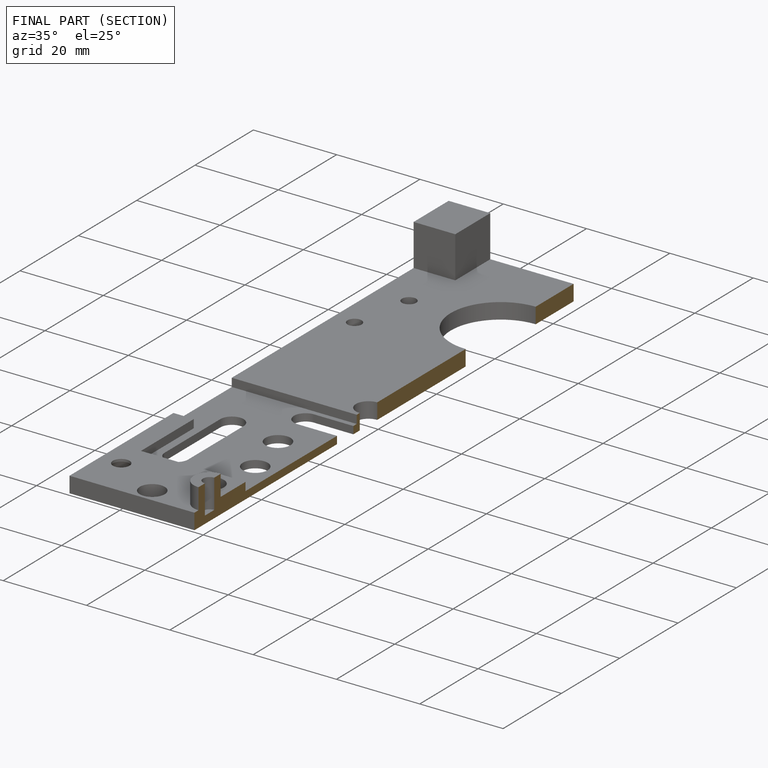
[diagram: finished part — half-section view (interior)]
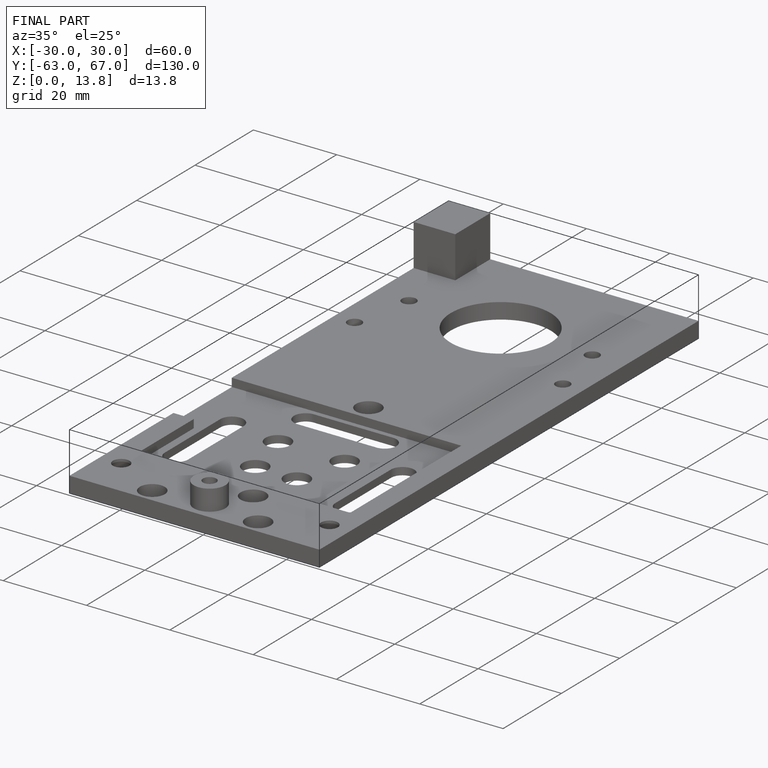
[diagram: finished part — iso view with bounding-box wireframe]
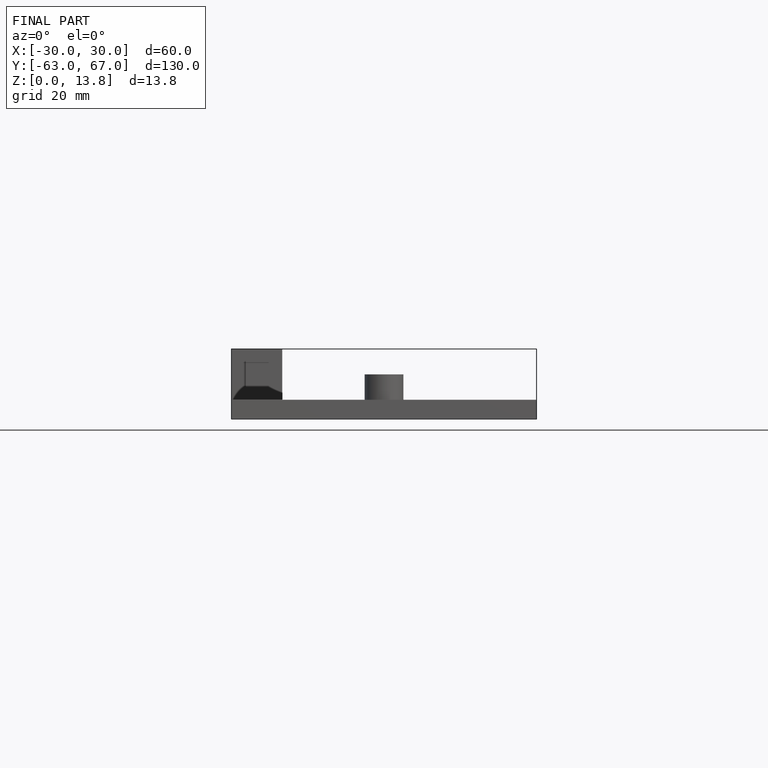
[diagram: finished part — front view with bounding-box wireframe]
